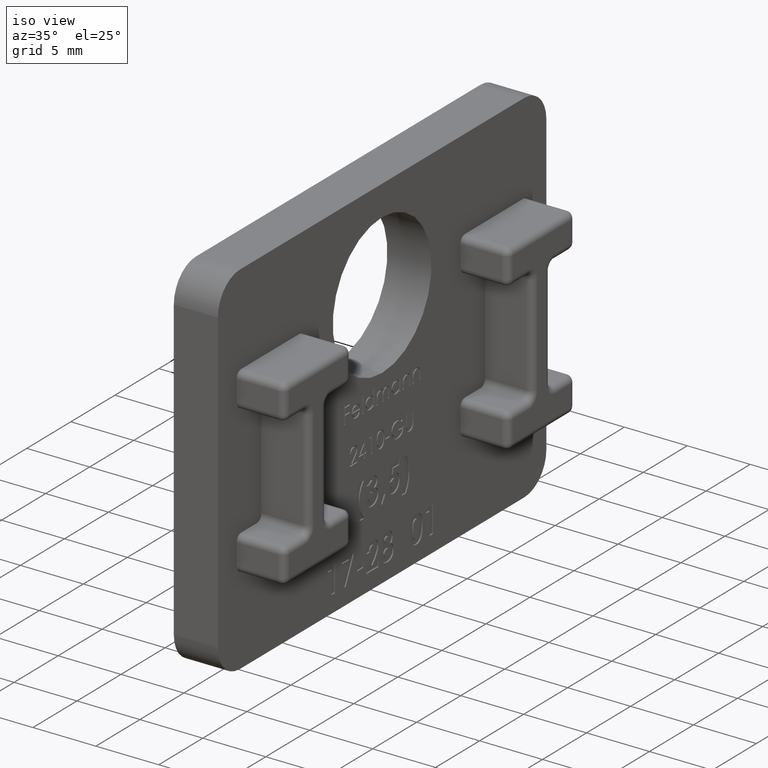
[diagram: clean part render]
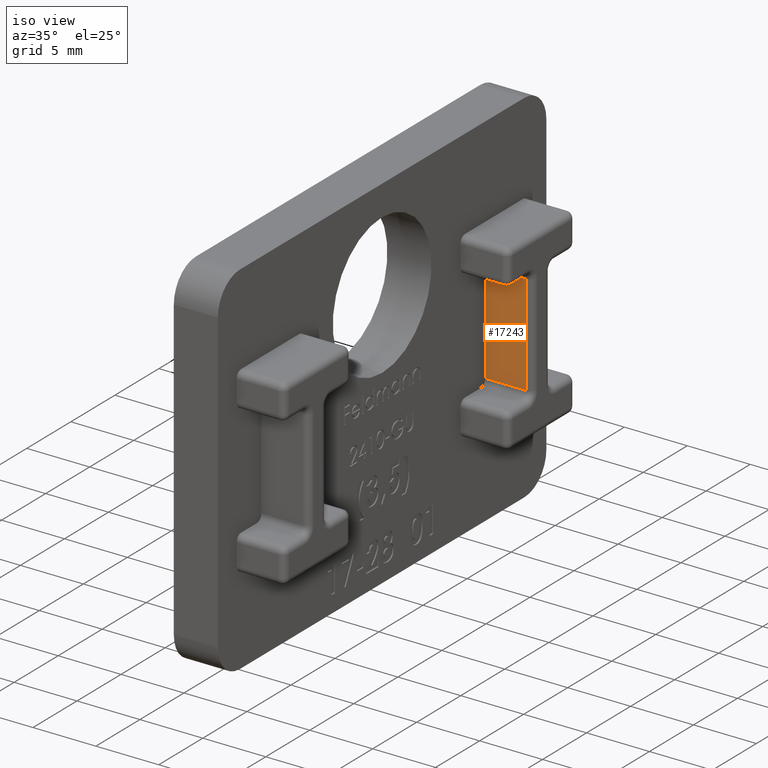
[diagram: same view with one face highlighted and labeled with its STEP entity id]
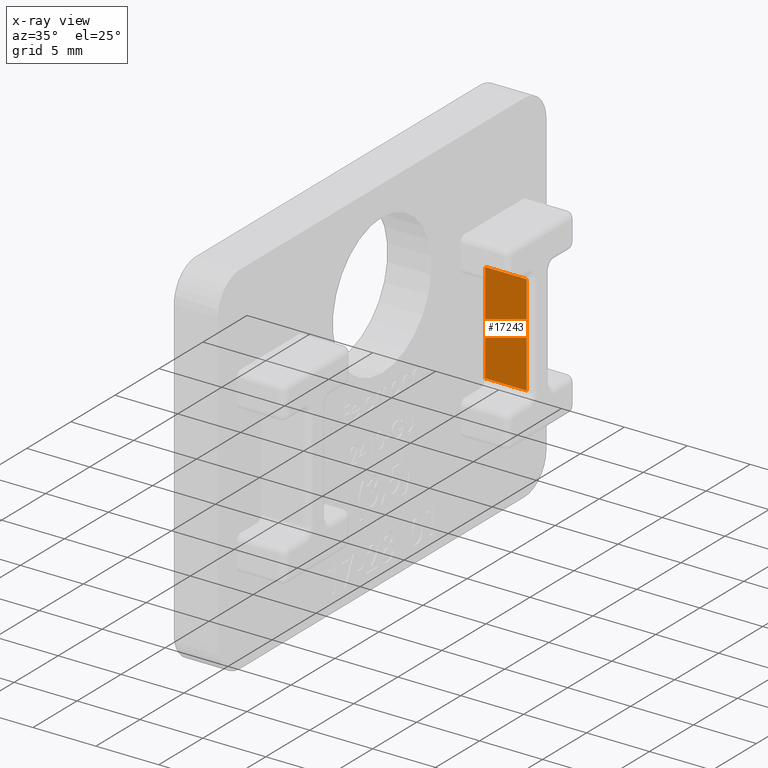
[diagram: x-ray of the same camera — body ghosted, the highlighted face saturated]
A machine part, iso view. The second image highlights one B-rep face of the part: STEP entity #17243.
The next image is the same camera in x-ray: the body ghosted, the highlighted face saturated — about 0% of this face is hidden behind the body in this view.
In plain terms, the highlighted planar face has unit normal (-0, 1, 0).
Its self-contained STEP definition (entity closure, byte-faithful):
#264 = LINE ( 'NONE', #5330, #23117 ) ;
#1141 = CARTESIAN_POINT ( 'NONE',  ( 5.549999999999999822, 11.69999999999999929, -4.100000000000001421 ) ) ;
#1492 = LINE ( 'NONE', #2710, #13904 ) ;
#1555 = DIRECTION ( 'NONE',  ( -0.000000000000000000, -1.927470528863119049E-16, 1.000000000000000000 ) ) ;
#1760 = DIRECTION ( 'NONE',  ( -0.000000000000000000, 1.927470528863118802E-16, -1.000000000000000000 ) ) ;
#2710 = CARTESIAN_POINT ( 'NONE',  ( 1.749999999999999778, 11.69999999999999751, 3.899999999999998135 ) ) ;
#4306 = ORIENTED_EDGE ( 'NONE', *, *, #12285, .T. ) ;
#4331 = VERTEX_POINT ( 'NONE', #22510 ) ;
#4570 = DIRECTION ( 'NONE',  ( -1.000000000000000000, 0.000000000000000000, 0.000000000000000000 ) ) ;
#5330 = CARTESIAN_POINT ( 'NONE',  ( 1.750000000000000000, 11.69999999999999929, -4.600000000000000533 ) ) ;
#5812 = DIRECTION ( 'NONE',  ( -0.000000000000000000, 1.000000000000000000, 1.927470528863119049E-16 ) ) ;
#6168 = VERTEX_POINT ( 'NONE', #22884 ) ;
#6810 = CARTESIAN_POINT ( 'NONE',  ( 1.750000000000000000, 11.69999999999999929, -4.100000000000001421 ) ) ;
#6907 = EDGE_CURVE ( 'NONE', #18789, #4331, #9582, .T. ) ;
#8743 = EDGE_CURVE ( 'NONE', #6168, #21919, #264, .T. ) ;
#9040 = CARTESIAN_POINT ( 'NONE',  ( 5.050000000000000711, 11.69999999999999929, -4.600000000000000533 ) ) ;
#9238 = ORIENTED_EDGE ( 'NONE', *, *, #8743, .T. ) ;
#9272 = CARTESIAN_POINT ( 'NONE',  ( 5.549999999999999822, 11.69999999999999929, -4.600000000000000533 ) ) ;
#9582 = LINE ( 'NONE', #9040, #12486 ) ;
#12285 = EDGE_CURVE ( 'NONE', #4331, #6168, #1492, .T. ) ;
#12486 = VECTOR ( 'NONE', #1555, 1000.000000000000000 ) ;
#12827 = ORIENTED_EDGE ( 'NONE', *, *, #6907, .T. ) ;
#13097 = ORIENTED_EDGE ( 'NONE', *, *, #13697, .T. ) ;
#13697 = EDGE_CURVE ( 'NONE', #21919, #18789, #16450, .T. ) ;
#13904 = VECTOR ( 'NONE', #4570, 1000.000000000000000 ) ;
#14144 = DIRECTION ( 'NONE',  ( 1.000000000000000000, -0.000000000000000000, -0.000000000000000000 ) ) ;
#15371 = CARTESIAN_POINT ( 'NONE',  ( 5.050000000000000711, 11.69999999999999929, -4.100000000000001421 ) ) ;
#16450 = LINE ( 'NONE', #1141, #16480 ) ;
#16480 = VECTOR ( 'NONE', #14144, 1000.000000000000000 ) ;
#17243 = ADVANCED_FACE ( 'NONE', ( #23034 ), #18550, .F. ) ;
#18550 = PLANE ( 'NONE',  #22978 ) ;
#18789 = VERTEX_POINT ( 'NONE', #15371 ) ;
#20475 = EDGE_LOOP ( 'NONE', ( #13097, #12827, #4306, #9238 ) ) ;
#21919 = VERTEX_POINT ( 'NONE', #6810 ) ;
#22337 = DIRECTION ( 'NONE',  ( 0.000000000000000000, -1.927470528863119049E-16, 1.000000000000000000 ) ) ;
#22510 = CARTESIAN_POINT ( 'NONE',  ( 5.050000000000000711, 11.69999999999999751, 3.899999999999998135 ) ) ;
#22884 = CARTESIAN_POINT ( 'NONE',  ( 1.750000000000000000, 11.69999999999999751, 3.899999999999998135 ) ) ;
#22978 = AXIS2_PLACEMENT_3D ( 'NONE', #9272, #5812, #22337 ) ;
#23034 = FACE_OUTER_BOUND ( 'NONE', #20475, .T. ) ;
#23117 = VECTOR ( 'NONE', #1760, 1000.000000000000000 ) ;